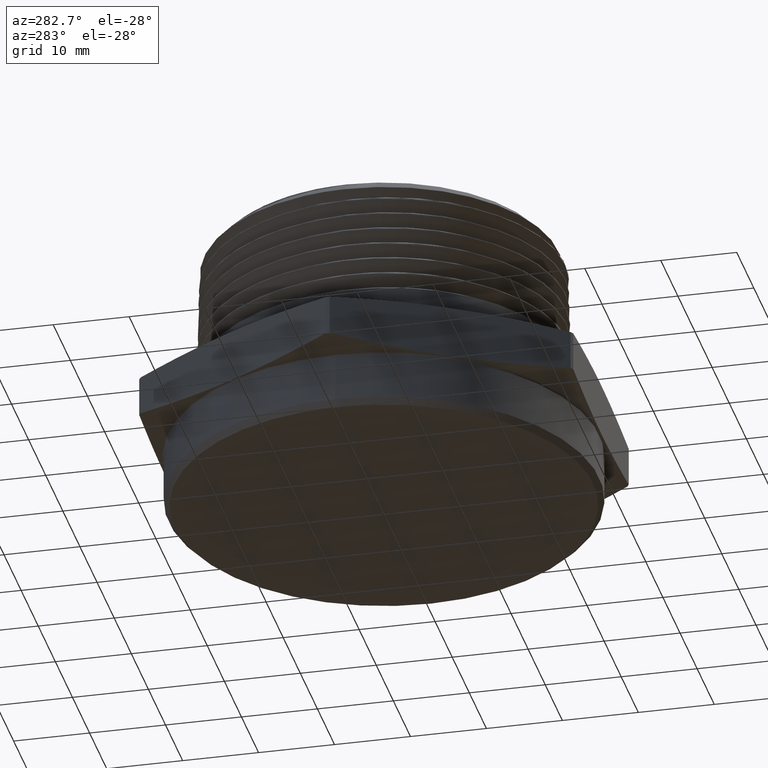
[diagram: clean part render]
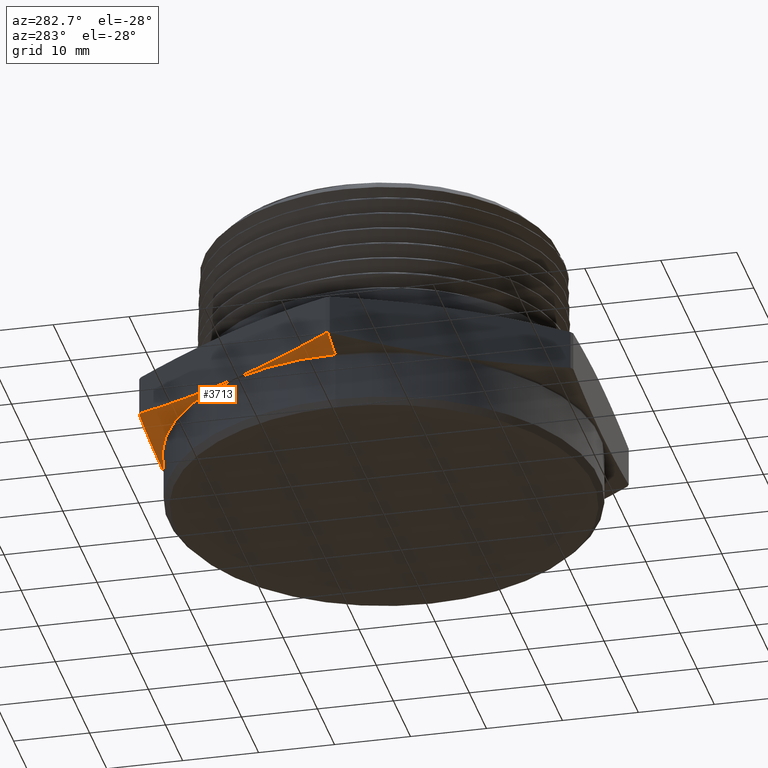
[diagram: same view with one face highlighted and labeled with its STEP entity id]
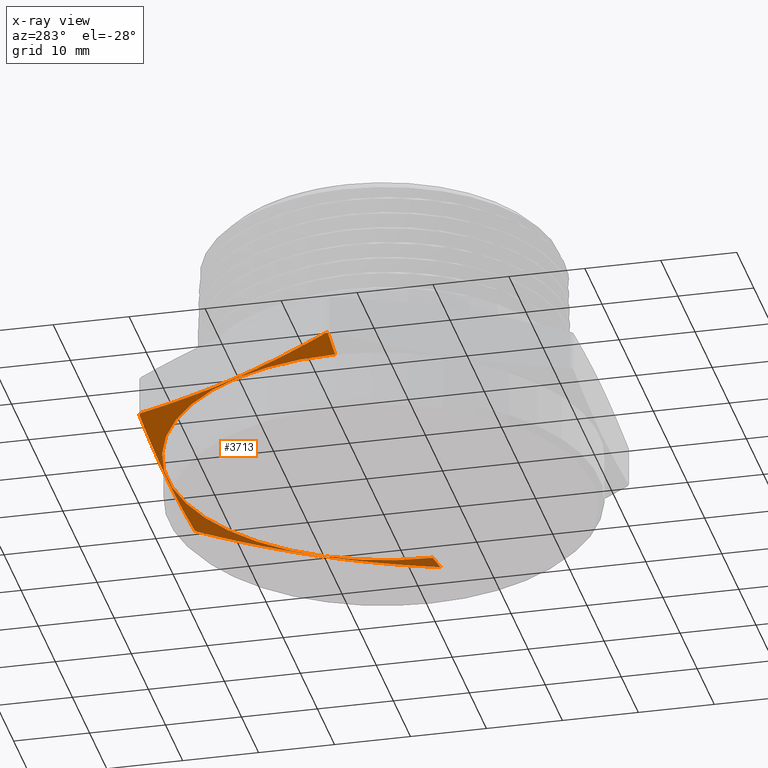
[diagram: x-ray of the same camera — body ghosted, the highlighted face saturated]
A machine part, auxiliary view. The second image highlights one B-rep face of the part: STEP entity #3713.
The next image is the same camera in x-ray: the body ghosted, the highlighted face saturated — about 37% of this face is hidden behind the body in this view.
In plain terms, the highlighted conical surface has half-angle 78 deg.
Its self-contained STEP definition (entity closure, byte-faithful):
#20 = EDGE_LOOP ( 'NONE', ( #2946, #2947, #2948, #2949, #2950, #2951, #2952, #2953, #2954, #2955 ) ) ;
#95 = CARTESIAN_POINT ( 'NONE',  ( 0.6374343438597268600, 1.124999999999999800, 0.03784316758887328000 ) ) ;
#112 = CARTESIAN_POINT ( 'NONE',  ( -1.292995751187356900, 0.01046566497281227600, 0.03784316758887328000 ) ) ;
#1514 = CARTESIAN_POINT ( 'NONE',  ( 0.6555614073276295800, 1.114534335027189000, 0.03784316758887303800 ) ) ;
#1524 = CARTESIAN_POINT ( 'NONE',  ( 1.293038105676658000, 0.0000000000000000000, 0.03784316758887295400 ) ) ;
#1546 = CARTESIAN_POINT ( 'NONE',  ( -1.293038105676658000, 0.0000000000000000000, 0.03784316758887328000 ) ) ;
#1802 = DIRECTION ( 'NONE',  ( 1.000000000000000000, 0.0000000000000000000, -1.254436925808409600E-016 ) ) ;
#1803 = CARTESIAN_POINT ( 'NONE',  ( 4.749266625594343700E-018, 0.0000000000000000000, 0.03784316758887311400 ) ) ;
#1804 = DIRECTION ( 'NONE',  ( 1.254986547952384500E-016, 0.0000000000000000000, 1.000000000000000000 ) ) ;
#1940 = CARTESIAN_POINT ( 'NONE',  ( 1.293038105676658000, 0.0000000000000000000, 0.03784316758887295400 ) ) ;
#1948 = DIRECTION ( 'NONE',  ( 0.9781476007338069100, 0.0000000000000000000, 0.2079116908177532600 ) ) ;
#1991 = DIRECTION ( 'NONE',  ( -0.9781476007338068000, 1.197885328332319700E-016, 0.2079116908177534300 ) ) ;
#1995 = CARTESIAN_POINT ( 'NONE',  ( -1.293038105676658000, 1.583514977292476400E-016, 0.03784316758887328000 ) ) ;
#1996 = CARTESIAN_POINT ( 'NONE',  ( 1.007786949827841200E-017, 0.0000000000000000000, 0.001683635675386918000 ) ) ;
#1997 = DIRECTION ( 'NONE',  ( 1.254986547952384500E-016, 0.0000000000000000000, 1.000000000000000000 ) ) ;
#1998 = DIRECTION ( 'NONE',  ( 1.000000000000000000, 0.0000000000000000000, -1.254415286903121600E-016 ) ) ;
#1999 = CARTESIAN_POINT ( 'NONE',  ( -0.6555614073276306900, 1.114534335027188100, 0.03784316758887328000 ) ) ;
#2000 = CARTESIAN_POINT ( 'NONE',  ( -0.7086809359826077300, 1.022528612522656700, 0.02671091992180355000 ) ) ;
#2001 = CARTESIAN_POINT ( 'NONE',  ( 4.749266625594343700E-018, 0.0000000000000000000, 0.03784316758887311400 ) ) ;
#2002 = DIRECTION ( 'NONE',  ( -1.254986547952384500E-016, -0.0000000000000000000, -1.000000000000000000 ) ) ;
#2003 = DIRECTION ( 'NONE',  ( -1.000000000000000000, 0.0000000000000000000, 1.254436925808409600E-016 ) ) ;
#2004 = CARTESIAN_POINT ( 'NONE',  ( -0.7618004646375850000, 0.9305228900181254900, 0.01769192599360983100 ) ) ;
#2005 = CARTESIAN_POINT ( 'NONE',  ( -0.8680395219475389700, 0.7465114450090627500, 0.005381381459842284200 ) ) ;
#2006 = CARTESIAN_POINT ( 'NONE',  ( -0.9742785792574935000, 0.5625000000000002200, -0.001130250226442121700 ) ) ;
#2007 = CARTESIAN_POINT ( 'NONE',  ( -1.080517636567447800, 0.3784885549909370300, 0.005381381459842326700 ) ) ;
#2008 = CARTESIAN_POINT ( 'NONE',  ( -1.186756693877402300, 0.1944771099818745400, 0.01769192599360992100 ) ) ;
#2009 = CARTESIAN_POINT ( 'NONE',  ( -1.239876222532379400, 0.1024713874773433100, 0.02671091992180365400 ) ) ;
#2010 = CARTESIAN_POINT ( 'NONE',  ( -1.292995751187356900, 0.01046566497281227600, 0.03784316758887328000 ) ) ;
#2011 = CARTESIAN_POINT ( 'NONE',  ( 0.6374343438597268600, 1.124999999999999800, 0.03784316758887328000 ) ) ;
#2012 = CARTESIAN_POINT ( 'NONE',  ( 0.5314230090217718600, 1.125000000000000200, 0.02673478179541041000 ) ) ;
#2013 = CARTESIAN_POINT ( 'NONE',  ( 4.749266625594343700E-018, 0.0000000000000000000, 0.03784316758887311400 ) ) ;
#2014 = DIRECTION ( 'NONE',  ( -1.254986547952384500E-016, -0.0000000000000000000, -1.000000000000000000 ) ) ;
#2015 = DIRECTION ( 'NONE',  ( -1.000000000000000000, 0.0000000000000000000, 1.254436925808409600E-016 ) ) ;
#2016 = CARTESIAN_POINT ( 'NONE',  ( 0.4253645999510997600, 1.124999999999999800, 0.01772498396908282800 ) ) ;
#2017 = CARTESIAN_POINT ( 'NONE',  ( 0.2131198371923395700, 1.124999999999999800, 0.005409210111748951500 ) ) ;
#2018 = CARTESIAN_POINT ( 'NONE',  ( 0.1069326787727585500, 1.124999999999999800, 0.002139109329887711900 ) ) ;
#2019 = CARTESIAN_POINT ( 'NONE',  ( -0.1055877381477448700, 1.124999999999999600, 0.002112107344879030500 ) ) ;
#2020 = CARTESIAN_POINT ( 'NONE',  ( -0.2119210197563299900, 1.124999999999999800, 0.005356236290480083000 ) ) ;
#2021 = CARTESIAN_POINT ( 'NONE',  ( -0.4247182803385503000, 1.125000000000000200, 0.01767103455844453600 ) ) ;
#2022 = CARTESIAN_POINT ( 'NONE',  ( -0.5312776202941617000, 1.125000000000000000, 0.02671954725394590200 ) ) ;
#2023 = CARTESIAN_POINT ( 'NONE',  ( -0.6374343438597268600, 1.124999999999999800, 0.03784316758887319700 ) ) ;
#2024 = CARTESIAN_POINT ( 'NONE',  ( 1.292995751187356900, 0.01046566497281173000, 0.03784316758887328000 ) ) ;
#2025 = CARTESIAN_POINT ( 'NONE',  ( 1.239876222532379400, 0.1024713874773432000, 0.02671091992180333500 ) ) ;
#2026 = CARTESIAN_POINT ( 'NONE',  ( 4.749266625594343700E-018, 0.0000000000000000000, 0.03784316758887311400 ) ) ;
#2027 = DIRECTION ( 'NONE',  ( -1.254986547952384500E-016, -0.0000000000000000000, -1.000000000000000000 ) ) ;
#2028 = DIRECTION ( 'NONE',  ( -1.000000000000000000, 0.0000000000000000000, 1.254436925808409600E-016 ) ) ;
#2029 = CARTESIAN_POINT ( 'NONE',  ( 1.186756693877401900, 0.1944771099818745400, 0.01769192599360961200 ) ) ;
#2030 = CARTESIAN_POINT ( 'NONE',  ( 1.080517636567447400, 0.3784885549909373100, 0.005381381459842026600 ) ) ;
#2031 = CARTESIAN_POINT ( 'NONE',  ( 0.9742785792574930600, 0.5625000000000003300, -0.001130250226442484100 ) ) ;
#2032 = CARTESIAN_POINT ( 'NONE',  ( 0.8680395219475384200, 0.7465114450090629700, 0.005381381459842069100 ) ) ;
#2033 = CARTESIAN_POINT ( 'NONE',  ( 0.7618004646375840000, 0.9305228900181260500, 0.01769192599360968500 ) ) ;
#2034 = CARTESIAN_POINT ( 'NONE',  ( 0.7086809359826070600, 1.022528612522657800, 0.02671091992180342100 ) ) ;
#2035 = CARTESIAN_POINT ( 'NONE',  ( 0.6555614073276295800, 1.114534335027189000, 0.03784316758887303800 ) ) ;
#2037 = CARTESIAN_POINT ( 'NONE',  ( 4.749266625594343700E-018, 0.0000000000000000000, 0.03784316758887311400 ) ) ;
#2038 = DIRECTION ( 'NONE',  ( -1.254986547952384500E-016, -0.0000000000000000000, -1.000000000000000000 ) ) ;
#2039 = DIRECTION ( 'NONE',  ( -1.000000000000000000, 0.0000000000000000000, 1.254436925808409600E-016 ) ) ;
#2783 = VERTEX_POINT ( 'NONE', #95 ) ;
#2795 = VERTEX_POINT ( 'NONE', #112 ) ;
#2818 = VERTEX_POINT ( 'NONE', #6125 ) ;
#2828 = VERTEX_POINT ( 'NONE', #6135 ) ;
#2830 = VERTEX_POINT ( 'NONE', #6137 ) ;
#2833 = VERTEX_POINT ( 'NONE', #6140 ) ;
#2834 = VERTEX_POINT ( 'NONE', #6141 ) ;
#2844 = VERTEX_POINT ( 'NONE', #1514 ) ;
#2854 = VERTEX_POINT ( 'NONE', #1524 ) ;
#2876 = VERTEX_POINT ( 'NONE', #1546 ) ;
#2946 = ORIENTED_EDGE ( 'NONE', *, *, #5296, .T. ) ;
#2947 = ORIENTED_EDGE ( 'NONE', *, *, #5297, .T. ) ;
#2948 = ORIENTED_EDGE ( 'NONE', *, *, #5298, .T. ) ;
#2949 = ORIENTED_EDGE ( 'NONE', *, *, #5299, .F. ) ;
#2950 = ORIENTED_EDGE ( 'NONE', *, *, #5300, .T. ) ;
#2951 = ORIENTED_EDGE ( 'NONE', *, *, #5301, .F. ) ;
#2952 = ORIENTED_EDGE ( 'NONE', *, *, #5302, .T. ) ;
#2953 = ORIENTED_EDGE ( 'NONE', *, *, #5303, .F. ) ;
#2954 = ORIENTED_EDGE ( 'NONE', *, *, #5304, .T. ) ;
#2955 = ORIENTED_EDGE ( 'NONE', *, *, #4609, .F. ) ;
#3183 = FACE_OUTER_BOUND ( 'NONE', #20, .T. ) ;
#3192 = CONICAL_SURFACE ( 'NONE', #4631, 1.293038105676658000, 1.361356816555583200 ) ;
#3257 = LINE ( 'NONE', #1940, #3259 ) ;
#3259 = VECTOR ( 'NONE', #1948, 39.37007874015748100 ) ;
#3266 = LINE ( 'NONE', #1995, #3274 ) ;
#3270 = CIRCLE ( 'NONE', #4683, 1.122920883091822700 ) ;
#3273 = CIRCLE ( 'NONE', #4684, 1.293038105676658000 ) ;
#3274 = VECTOR ( 'NONE', #1991, 39.37007874015748900 ) ;
#3276 = CIRCLE ( 'NONE', #4685, 1.293038105676658000 ) ;
#3277 = CIRCLE ( 'NONE', #4686, 1.293038105676658000 ) ;
#3278 = CIRCLE ( 'NONE', #4687, 1.293038105676658000 ) ;
#3713 = ADVANCED_FACE ( 'NONE', ( #3183 ), #3192, .T. ) ;
#4609 = EDGE_CURVE ( 'NONE', #2828, #2854, #3257, .T. ) ;
#4631 = AXIS2_PLACEMENT_3D ( 'NONE', #1803, #1804, #1802 ) ;
#4683 = AXIS2_PLACEMENT_3D ( 'NONE', #1996, #1997, #1998 ) ;
#4684 = AXIS2_PLACEMENT_3D ( 'NONE', #2001, #2002, #2003 ) ;
#4685 = AXIS2_PLACEMENT_3D ( 'NONE', #2013, #2014, #2015 ) ;
#4686 = AXIS2_PLACEMENT_3D ( 'NONE', #2026, #2027, #2028 ) ;
#4687 = AXIS2_PLACEMENT_3D ( 'NONE', #2037, #2038, #2039 ) ;
#5296 = EDGE_CURVE ( 'NONE', #2828, #2833, #3270, .T. ) ;
#5297 = EDGE_CURVE ( 'NONE', #2833, #2876, #3266, .T. ) ;
#5298 = EDGE_CURVE ( 'NONE', #2876, #2795, #3273, .T. ) ;
#5299 = EDGE_CURVE ( 'NONE', #2834, #2795, #6105, .T. ) ;
#5300 = EDGE_CURVE ( 'NONE', #2834, #2830, #3276, .T. ) ;
#5301 = EDGE_CURVE ( 'NONE', #2783, #2830, #6107, .T. ) ;
#5302 = EDGE_CURVE ( 'NONE', #2783, #2844, #3277, .T. ) ;
#5303 = EDGE_CURVE ( 'NONE', #2818, #2844, #6104, .T. ) ;
#5304 = EDGE_CURVE ( 'NONE', #2818, #2854, #3278, .T. ) ;
#6104 = B_SPLINE_CURVE_WITH_KNOTS ( 'NONE', 3,
 ( #2024, #2025, #2029, #2030, #2031, #2032, #2033, #2034, #2035 ),
 .UNSPECIFIED., .F., .F.,
 ( 4, 2, 1, 2, 4 ),
 ( 1.908587031637594600E-006, 0.008097324754050165600, 0.01619274092106869400, 0.02428815708808722300, 0.03238357325510576200 ),
 .UNSPECIFIED. ) ;
#6105 = B_SPLINE_CURVE_WITH_KNOTS ( 'NONE', 3,
 ( #1999, #2000, #2004, #2005, #2006, #2007, #2008, #2009, #2010 ),
 .UNSPECIFIED., .F., .F.,
 ( 4, 2, 1, 2, 4 ),
 ( 1.908587031562786400E-006, 0.008097324754050082300, 0.01619274092106860400, 0.02428815708808712600, 0.03238357325510564400 ),
 .UNSPECIFIED. ) ;
#6107 = B_SPLINE_CURVE_WITH_KNOTS ( 'NONE', 3,
 ( #2011, #2012, #2016, #2017, #2018, #2019, #2020, #2021, #2022, #2023 ),
 .UNSPECIFIED., .F., .F.,
 ( 4, 2, 2, 2, 4 ),
 ( 0.06266755112108941800, 0.07078731948426066100, 0.07890708784743190300, 0.08702685621060314600, 0.09514662457377438800 ),
 .UNSPECIFIED. ) ;
#6125 = CARTESIAN_POINT ( 'NONE',  ( 1.292995751187356900, 0.01046566497281173000, 0.03784316758887328000 ) ) ;
#6135 = CARTESIAN_POINT ( 'NONE',  ( 1.122920883091818700, 0.0000000000000000000, 0.001683635675386772900 ) ) ;
#6137 = CARTESIAN_POINT ( 'NONE',  ( -0.6374343438597268600, 1.124999999999999800, 0.03784316758887319700 ) ) ;
#6140 = CARTESIAN_POINT ( 'NONE',  ( -1.122920883091818700, 1.375181465174115000E-016, 0.001683635675387058700 ) ) ;
#6141 = CARTESIAN_POINT ( 'NONE',  ( -0.6555614073276306900, 1.114534335027188100, 0.03784316758887328000 ) ) ;